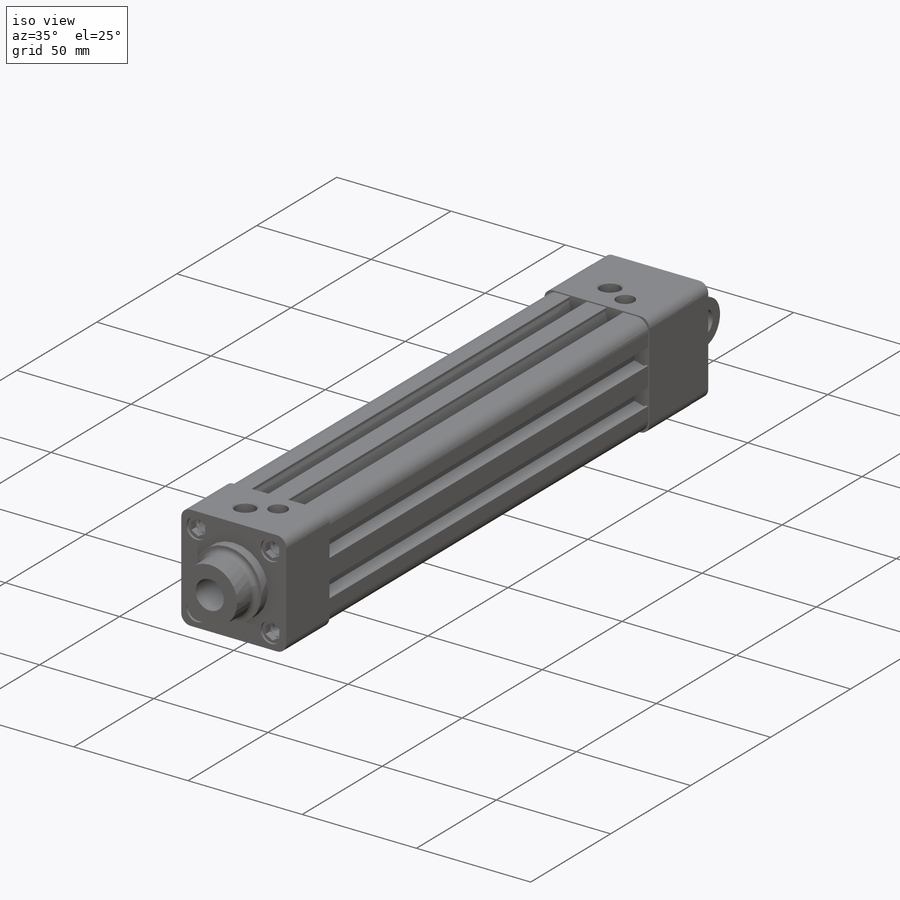
[diagram: iso view]
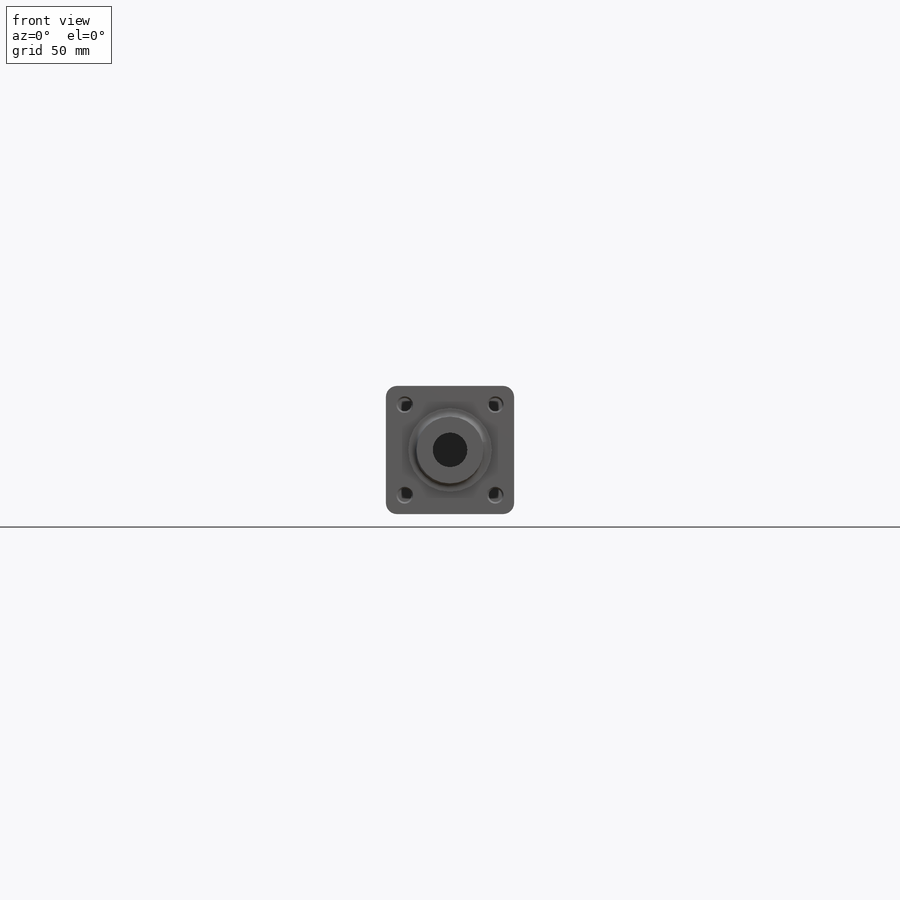
[diagram: front view]
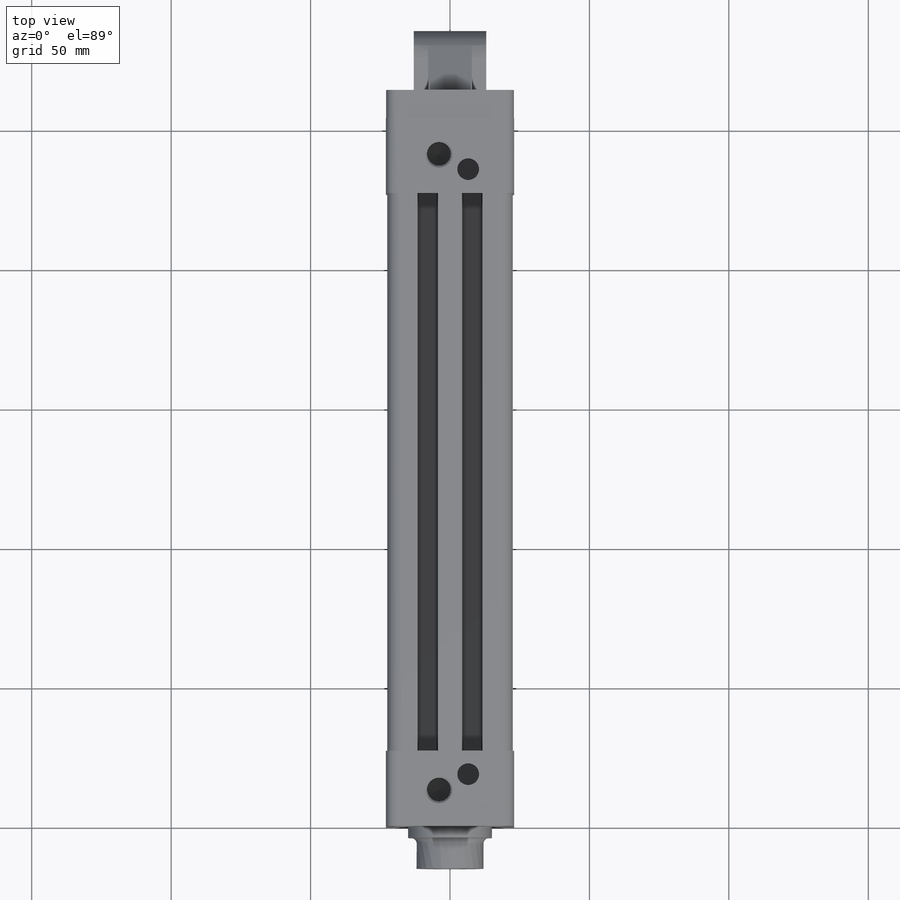
[diagram: top view]
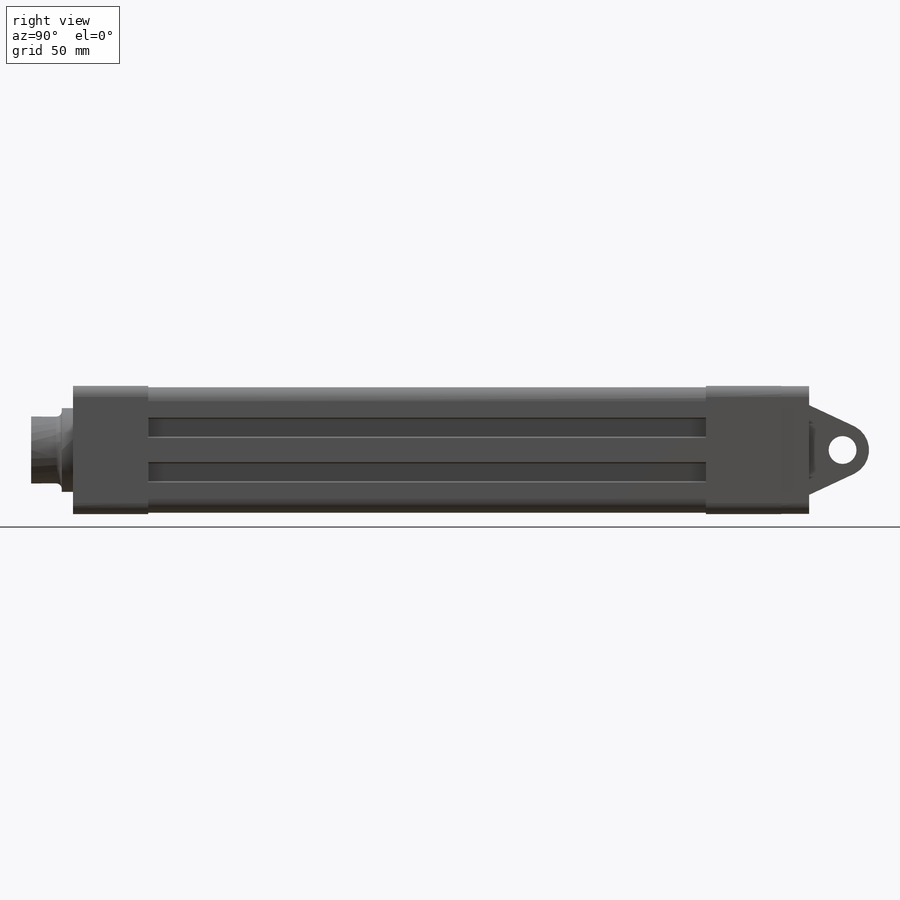
[diagram: right view]
SOLIDWORKS PART (.sldprt)
format: sldprt  version: not decoded by parser v0  size: 736,768 bytes
history: native  units: mm
features: plane x30, sketch x30, cut_revolve x12, cut_extrude x11, thread x10, extrude x6, material x1, revolve x1 (+17 scaffold rows collapsed)
feature tree (118):
  scaffold x17  (default folders/planes/origin — collapsed)
  material  "Material <not specified>"
  plane  "Plane1"
  sketch  "Sketch1"
  extrude  "Boss-Extrude1"  Depth=27mm
  plane  "Plane2"
  sketch  "Sketch2"
  extrude  "Boss-Extrude2"  Depth=200mm
  plane  "Plane3"
  sketch  "Sketch3"
  extrude  "Boss-Extrude3"  Depth=27mm
  plane  "Plane4"
  sketch  "Sketch4"
  cut_extrude  "Cut-Extrude1"  Depth=4mm
  plane  "Plane5"
  sketch  "Sketch5"
  cut_revolve  "Cut-Revolve1"  [1 undecoded]
  thread  "Cosmetic Thread1"  Diameter=12.3865mm  [1 undecoded]
  plane  "Plane6"
  sketch  "Sketch6"
  cut_extrude  "Cut-Extrude2"  Depth=4mm
  plane  "Plane7"
  sketch  "Sketch7"
  cut_revolve  "Cut-Revolve2"  [1 undecoded]
  thread  "Cosmetic Thread2"  Diameter=12.3865mm  [1 undecoded]
  plane  "Plane8"
  sketch  "Sketch8"
  cut_extrude  "Cut-Extrude3"  Depth=4mm
  plane  "Plane9"
  sketch  "Sketch9"
  cut_revolve  "Cut-Revolve3"  [1 undecoded]
  thread  "Cosmetic Thread3"  Diameter=12.3865mm  [1 undecoded]
  plane  "Plane10"
  sketch  "Sketch10"
  cut_extrude  "Cut-Extrude4"  Depth=4mm
  plane  "Plane11"
  sketch  "Sketch11"
  cut_revolve  "Cut-Revolve4"  [1 undecoded]
  thread  "Cosmetic Thread4"  Diameter=12.3865mm  [1 undecoded]
  plane  "Plane12"
  sketch  "Sketch12"
  cut_extrude  "Cut-Extrude5"  Depth=4mm
  plane  "Plane13"
  sketch  "Sketch13"
  cut_revolve  "Cut-Revolve5"  [1 undecoded]
  thread  "Cosmetic Thread5"  Diameter=12.3865mm  [1 undecoded]
  plane  "Plane14"
  sketch  "Sketch14"
  cut_extrude  "Cut-Extrude6"  Depth=4mm
  plane  "Plane15"
  sketch  "Sketch15"
  cut_revolve  "Cut-Revolve6"  [1 undecoded]
  thread  "Cosmetic Thread6"  Diameter=12.3865mm  [1 undecoded]
  plane  "Plane16"
  sketch  "Sketch16"
  cut_extrude  "Cut-Extrude7"  Depth=4mm
  plane  "Plane17"
  sketch  "Sketch17"
  cut_revolve  "Cut-Revolve7"  [1 undecoded]
  thread  "Cosmetic Thread7"  Diameter=12.3865mm  [1 undecoded]
  plane  "Plane18"
  sketch  "Sketch18"
  cut_extrude  "Cut-Extrude8"  Depth=4mm
  plane  "Plane19"
  sketch  "Sketch19"
  cut_revolve  "Cut-Revolve8"  [1 undecoded]
  thread  "Cosmetic Thread8"  Diameter=12.3865mm  [1 undecoded]
  plane  "Plane20"
  sketch  "Sketch20"
  cut_revolve  "Cut-Revolve9"  [1 undecoded]
  thread  "Cosmetic Thread9"  Diameter=11.5mm  [1 undecoded]
  plane  "Plane21"
  sketch  "Sketch21"
  cut_revolve  "Cut-Revolve10"  Angle=360deg
  plane  "Plane22"
  sketch  "Sketch22"
  cut_extrude  "Cut-Extrude9"  Depth=2.5mm
  plane  "Plane23"
  sketch  "Sketch23"
  cut_revolve  "Cut-Revolve11"  [1 undecoded]
  thread  "Cosmetic Thread10"  Diameter=11.5mm  [1 undecoded]
  plane  "Plane24"
  sketch  "Sketch24"
  cut_revolve  "Cut-Revolve12"  Angle=360deg
  plane  "Plane25"
  sketch  "Sketch25"
  extrude  "Boss-Extrude4"  Depth=10mm
  plane  "Plane26"
  sketch  "Sketch26"
  extrude  "Boss-Extrude5"  Depth=7.8mm
  plane  "Plane27"
  sketch  "Sketch27"
  extrude  "Boss-Extrude6"  Depth=13mm
  plane  "Plane28"
  sketch  "Sketch28"
  cut_extrude  "Cut-Extrude10"  Depth=14mm
  plane  "Plane29"
  sketch  "Sketch29"
  revolve  "Revolve1"  Angle=360deg
  plane  "Plane30"
  sketch  "Sketch30"
  cut_extrude  "Cut-Extrude11"  Depth=162mm
decode coverage: 30 of 70 modeling features carry decoded parameters
note: 20 parameter values undecoded
summary: no parameter record found for 10 features
note: suppression state not decoded; provenance and decode notes live in map.json
